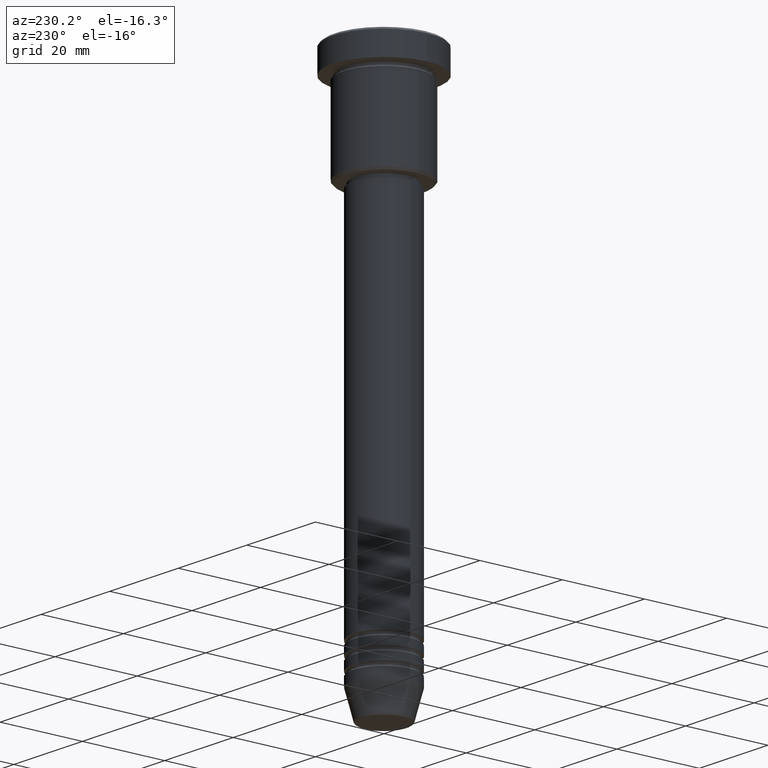
[diagram: clean part render]
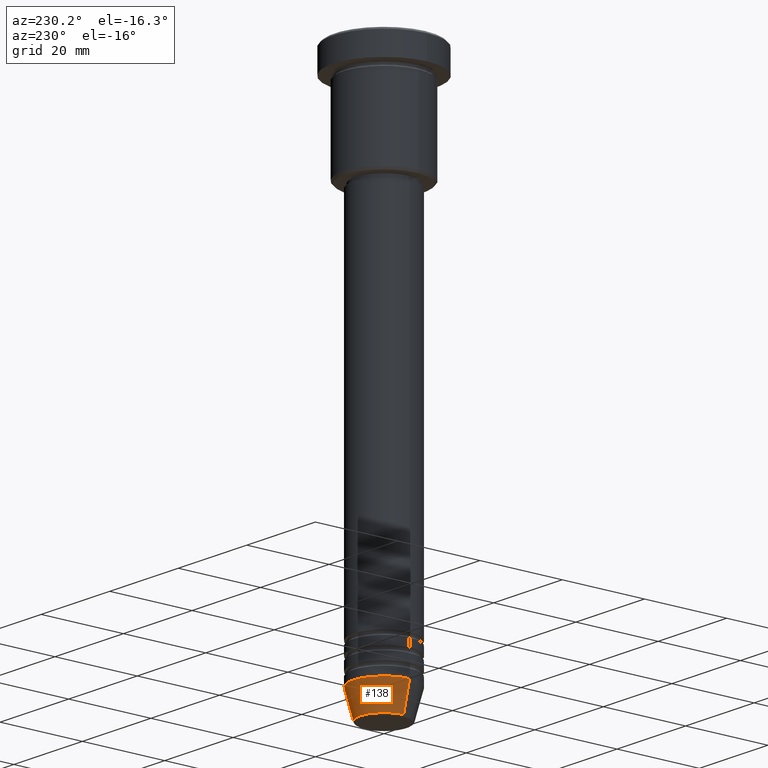
[diagram: same view with one face highlighted and labeled with its STEP entity id]
A machine part, auxiliary view. The second image highlights one B-rep face of the part: STEP entity #138.
In plain terms, the highlighted conical surface has half-angle 15 deg.
Its self-contained STEP definition (entity closure, byte-faithful):
#2 = CONICAL_SURFACE ( 'NONE', #800, 7.500000000000000000, 0.2617993877991500740 ) ;
#76 = ORIENTED_EDGE ( 'NONE', *, *, #310, .T. ) ;
#138 = ADVANCED_FACE ( 'NONE', ( #643 ), #2, .T. ) ;
#226 = CARTESIAN_POINT ( 'NONE',  ( -5.723655072137191269, 8.097153428560735915E-16, -131.6294095225512422 ) ) ;
#310 = EDGE_CURVE ( 'NONE', #858, #358, #1033, .T. ) ;
#348 = LINE ( 'NONE', #631, #629 ) ;
#358 = VERTEX_POINT ( 'NONE', #226 ) ;
#379 = CARTESIAN_POINT ( 'NONE',  ( 0.000000000000000000, 0.000000000000000000, -125.0000000000000000 ) ) ;
#413 = VERTEX_POINT ( 'NONE', #1155 ) ;
#415 = DIRECTION ( 'NONE',  ( -0.000000000000000000, -0.000000000000000000, 1.000000000000000000 ) ) ;
#417 = EDGE_LOOP ( 'NONE', ( #76, #616, #501, #957 ) ) ;
#477 = AXIS2_PLACEMENT_3D ( 'NONE', #854, #1124, #761 ) ;
#501 = ORIENTED_EDGE ( 'NONE', *, *, #844, .F. ) ;
#525 = DIRECTION ( 'NONE',  ( -0.2588190451025213501, 3.169619151431772337E-17, 0.9659258262890680902 ) ) ;
#555 = AXIS2_PLACEMENT_3D ( 'NONE', #379, #737, #1105 ) ;
#558 = DIRECTION ( 'NONE',  ( 1.000000000000000000, 0.000000000000000000, 0.000000000000000000 ) ) ;
#559 = CARTESIAN_POINT ( 'NONE',  ( 5.723655072137191269, 0.000000000000000000, -131.6294095225512422 ) ) ;
#605 = CARTESIAN_POINT ( 'NONE',  ( 7.500000000000000000, 0.000000000000000000, -125.0000000000000000 ) ) ;
#616 = ORIENTED_EDGE ( 'NONE', *, *, #1142, .T. ) ;
#629 = VECTOR ( 'NONE', #525, 1000.000000000000000 ) ;
#631 = CARTESIAN_POINT ( 'NONE',  ( -7.500000000000000000, 9.184850993605147944E-16, -125.0000000000000000 ) ) ;
#643 = FACE_OUTER_BOUND ( 'NONE', #417, .T. ) ;
#671 = DIRECTION ( 'NONE',  ( 0.2588190451025213501, 0.000000000000000000, 0.9659258262890680902 ) ) ;
#737 = DIRECTION ( 'NONE',  ( -0.000000000000000000, -0.000000000000000000, 1.000000000000000000 ) ) ;
#761 = DIRECTION ( 'NONE',  ( 1.000000000000000000, 0.000000000000000000, 0.000000000000000000 ) ) ;
#800 = AXIS2_PLACEMENT_3D ( 'NONE', #863, #415, #558 ) ;
#844 = EDGE_CURVE ( 'NONE', #413, #938, #1128, .T. ) ;
#854 = CARTESIAN_POINT ( 'NONE',  ( 0.000000000000000000, 0.000000000000000000, -131.6294095225512422 ) ) ;
#858 = VERTEX_POINT ( 'NONE', #559 ) ;
#863 = CARTESIAN_POINT ( 'NONE',  ( 0.000000000000000000, 0.000000000000000000, -125.0000000000000000 ) ) ;
#875 = LINE ( 'NONE', #605, #1169 ) ;
#938 = VERTEX_POINT ( 'NONE', #1138 ) ;
#957 = ORIENTED_EDGE ( 'NONE', *, *, #994, .F. ) ;
#994 = EDGE_CURVE ( 'NONE', #858, #413, #875, .T. ) ;
#1033 = CIRCLE ( 'NONE', #477, 5.723655072137191269 ) ;
#1105 = DIRECTION ( 'NONE',  ( 1.000000000000000000, 0.000000000000000000, 0.000000000000000000 ) ) ;
#1124 = DIRECTION ( 'NONE',  ( -0.000000000000000000, -0.000000000000000000, 1.000000000000000000 ) ) ;
#1128 = CIRCLE ( 'NONE', #555, 7.500000000000000000 ) ;
#1138 = CARTESIAN_POINT ( 'NONE',  ( -7.500000000000000000, 9.184850993605147944E-16, -125.0000000000000000 ) ) ;
#1142 = EDGE_CURVE ( 'NONE', #358, #938, #348, .T. ) ;
#1155 = CARTESIAN_POINT ( 'NONE',  ( 7.500000000000000000, 0.000000000000000000, -125.0000000000000000 ) ) ;
#1169 = VECTOR ( 'NONE', #671, 1000.000000000000000 ) ;